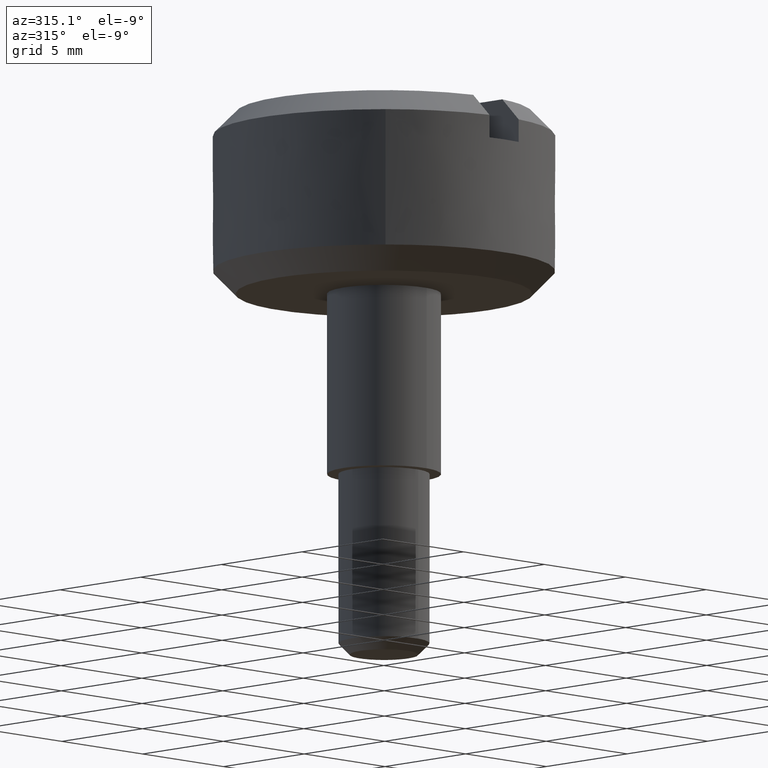
[diagram: clean part render]
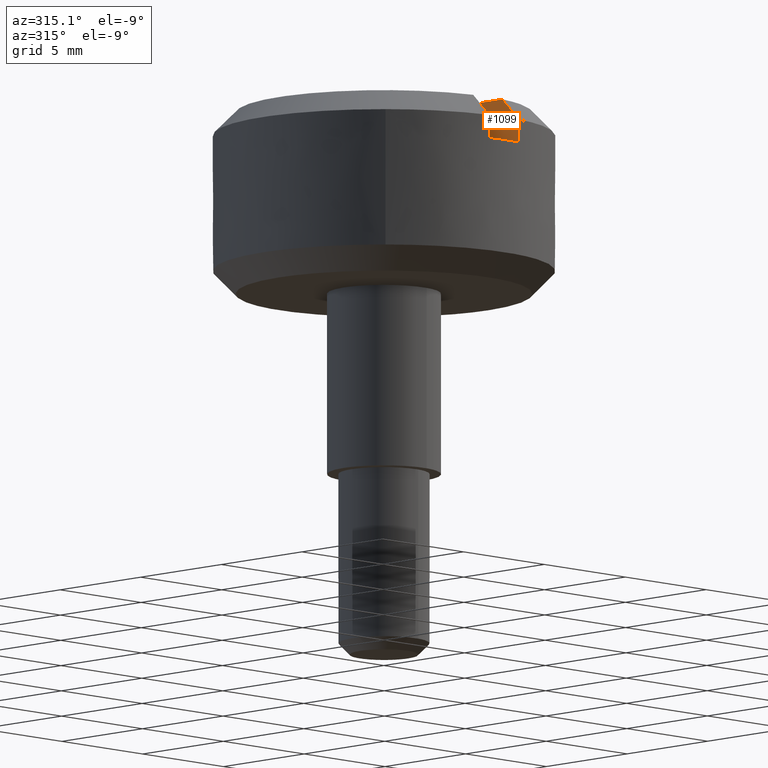
[diagram: same view with one face highlighted and labeled with its STEP entity id]
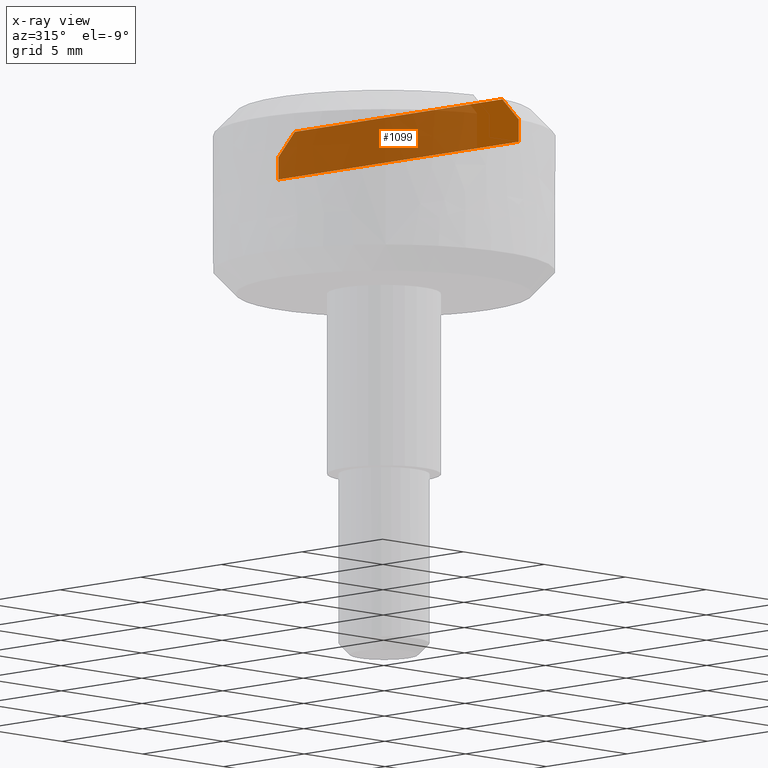
[diagram: x-ray of the same camera — body ghosted, the highlighted face saturated]
A machine part, auxiliary view. The second image highlights one B-rep face of the part: STEP entity #1099.
The next image is the same camera in x-ray: the body ghosted, the highlighted face saturated — about 83% of this face is hidden behind the body in this view.
In plain terms, the highlighted face is a freeform B-spline surface patch.
Its self-contained STEP definition (entity closure, byte-faithful):
#674=CARTESIAN_POINT('',(0.899999999999984,-7.445804187597109,5.999999999999720));
#675=VERTEX_POINT('',#674);
#689=CARTESIAN_POINT('',(0.899999999999984,7.445804187597109,5.999999999999720));
#690=VERTEX_POINT('',#689);
#691=CARTESIAN_POINT('',(0.899999999999984,7.445804187597109,5.999999999999720));
#692=CARTESIAN_POINT('',(0.899999999999984,-7.445804187597109,5.999999999999720));
#693=QUASI_UNIFORM_CURVE('',1,(#691,#692),.UNSPECIFIED.,.F.,.U.);
#694=EDGE_CURVE('',#690,#675,#693,.T.);
#982=CARTESIAN_POINT('',(0.899999999999984,-7.445804187594560,6.999999999997391));
#983=VERTEX_POINT('',#982);
#999=CARTESIAN_POINT('',(0.899999999999984,-7.445804187597109,5.999999999999720));
#1000=CARTESIAN_POINT('',(0.899999999999984,-7.445804187594560,6.999999999997391));
#1001=QUASI_UNIFORM_CURVE('',1,(#999,#1000),.UNSPECIFIED.,.F.,.U.);
#1002=EDGE_CURVE('',#675,#983,#1001,.T.);
#1041=CARTESIAN_POINT('',(0.899999999999984,7.445804187594570,6.999999999997380));
#1042=VERTEX_POINT('',#1041);
#1043=CARTESIAN_POINT('',(0.899999999999984,7.445804187594570,6.999999999997380));
#1044=CARTESIAN_POINT('',(0.899999999999984,7.445804187597109,5.999999999999720));
#1045=QUASI_UNIFORM_CURVE('',1,(#1043,#1044),.UNSPECIFIED.,.F.,.U.);
#1046=EDGE_CURVE('',#1042,#690,#1045,.T.);
#1066=CARTESIAN_POINT('',(0.899999999999984,-8.189639997075233,8.099899996123332));
#1067=CARTESIAN_POINT('',(0.899999999999984,-8.189639997075233,5.900099950231928));
#1068=CARTESIAN_POINT('',(0.899999999999984,8.189640396499295,8.099899996123332));
#1069=CARTESIAN_POINT('',(0.899999999999984,8.189640396499295,5.900099950231928));
#1070=B_SPLINE_SURFACE_WITH_KNOTS('',1,1,((#1066,#1068),(#1067,#1069)),.UNSPECIFIED.,.F.,.F.,.U.,(2,2),(2,2),(0.0,2.199800045891404),(0.0,16.379280393574529),.UNSPECIFIED.);
#1071=ORIENTED_EDGE('',*,*,#1002,.T.);
#1072=CARTESIAN_POINT('',(0.899999999999984,-6.437390775772660,7.999999999999719));
#1073=VERTEX_POINT('',#1072);
#1074=CARTESIAN_POINT('',(0.899999999999984,-7.445804187594560,6.999999999997391));
#1075=CARTESIAN_POINT('',(0.899999999999984,-7.109850583502810,7.333519141446980));
#1076=CARTESIAN_POINT('',(0.899999999999984,-6.773750285482694,7.666890308169407));
#1077=CARTESIAN_POINT('',(0.899999999999984,-6.437390775772660,7.999999999999719));
#1078=B_SPLINE_CURVE_WITH_KNOTS('',3,(#1074,#1075,#1076,#1077),.UNSPECIFIED.,.F.,.U.,(4,4),(0.0,0.070808166643186),.UNSPECIFIED.);
#1079=EDGE_CURVE('',#983,#1073,#1078,.T.);
#1080=ORIENTED_EDGE('',*,*,#1079,.T.);
#1081=CARTESIAN_POINT('',(0.899999999999984,6.437390775772660,7.999999999999719));
#1082=VERTEX_POINT('',#1081);
#1083=CARTESIAN_POINT('',(0.899999999999984,6.437390775772660,7.999999999999719));
#1084=CARTESIAN_POINT('',(0.899999999999984,-6.437390775772660,7.999999999999719));
#1085=QUASI_UNIFORM_CURVE('',1,(#1083,#1084),.UNSPECIFIED.,.F.,.U.);
#1086=EDGE_CURVE('',#1082,#1073,#1085,.T.);
#1087=ORIENTED_EDGE('',*,*,#1086,.F.);
#1088=CARTESIAN_POINT('',(0.899999999999984,6.437390775772660,7.999999999999719));
#1089=CARTESIAN_POINT('',(0.899999999999984,6.773750161947215,7.666890425771695));
#1090=CARTESIAN_POINT('',(0.899999999999984,7.109850490492798,7.333519248876078));
#1091=CARTESIAN_POINT('',(0.899999999999984,7.445804187594570,6.999999999997380));
#1092=B_SPLINE_CURVE_WITH_KNOTS('',3,(#1088,#1089,#1090,#1091),.UNSPECIFIED.,.F.,.U.,(4,4),(0.929162089459600,1.0),.UNSPECIFIED.);
#1093=EDGE_CURVE('',#1082,#1042,#1092,.T.);
#1094=ORIENTED_EDGE('',*,*,#1093,.T.);
#1095=ORIENTED_EDGE('',*,*,#1046,.T.);
#1096=ORIENTED_EDGE('',*,*,#694,.T.);
#1097=EDGE_LOOP('',(#1071,#1080,#1087,#1094,#1095,#1096));
#1098=FACE_OUTER_BOUND('',#1097,.T.);
#1099=ADVANCED_FACE('',(#1098),#1070,.F.);